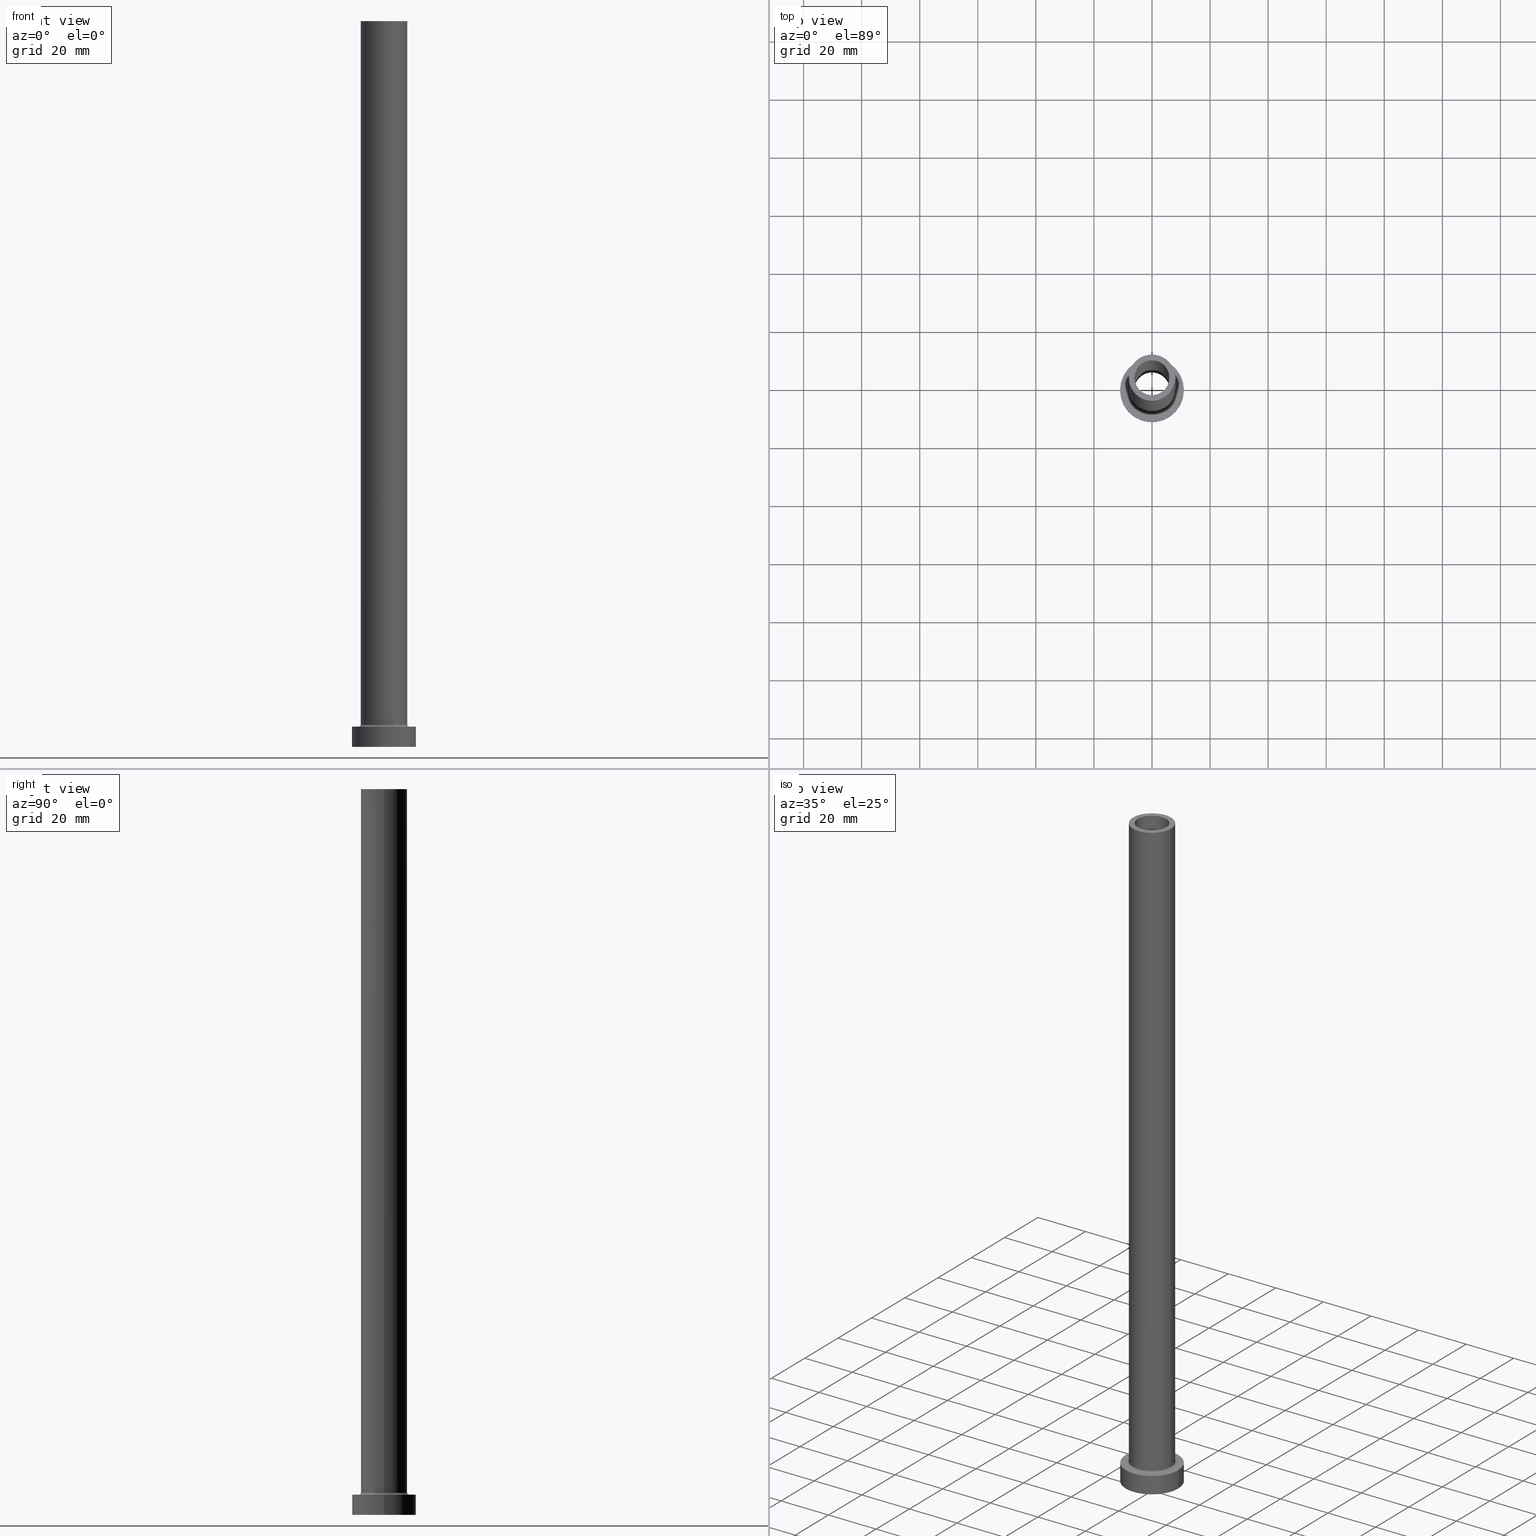
[diagram: canonical four-view strip — front | top / right | iso, engineering-drawing reading convention]
A machine part, canonical four-view strip (front | top / right | iso — engineering-drawing reading convention). The complete STEP part file that produces these views, byte-faithful:
ISO-10303-21;
HEADER;
FILE_DESCRIPTION (( 'STEP AP203' ),
    '1' );
FILE_NAME ('228f.STEP',
    '2023-02-13T09:07:29',
    ( '' ),
    ( '' ),
    'SwSTEP 2.0',
    'SolidWorks 2019',
    '' );
FILE_SCHEMA (( 'CONFIG_CONTROL_DESIGN' ));
ENDSEC;

DATA;
#1 = DIRECTION ( 'NONE',  ( -1.000000000000000000, 1.224646799147353207E-16, 0.000000000000000000 ) ) ;
#2 = EDGE_LOOP ( 'NONE', ( #258, #254, #183, #315 ) ) ;
#3 = ADVANCED_FACE ( 'NONE', ( #377 ), #167, .T. ) ;
#4 = CARTESIAN_POINT ( 'NONE',  ( -6.150000000000000355, 0.000000000000000000, 205.0000000000000284 ) ) ;
#5 = DIRECTION ( 'NONE',  ( -1.000000000000000000, 0.000000000000000000, 0.000000000000000000 ) ) ;
#6 = EDGE_CURVE ( 'NONE', #221, #110, #362, .T. ) ;
#7 = TOROIDAL_SURFACE ( 'NONE', #452, 8.699999999999999289, 0.6999999999999999556 ) ;
#8 = LINE ( 'NONE', #289, #176 ) ;
#9 = ORIENTED_EDGE ( 'NONE', *, *, #457, .T. ) ;
#10 = FACE_OUTER_BOUND ( 'NONE', #290, .T. ) ;
#11 = VECTOR ( 'NONE', #63, 1000.000000000000000 ) ;
#12 = ORIENTED_EDGE ( 'NONE', *, *, #274, .F. ) ;
#13 = LOCAL_TIME ( 10, 7, 29.00000000000000000, #134 ) ;
#14 = DIRECTION ( 'NONE',  ( 1.000000000000000000, 0.000000000000000000, 0.000000000000000000 ) ) ;
#15 = EDGE_LOOP ( 'NONE', ( #401, #184, #142, #443 ) ) ;
#16 = ORIENTED_EDGE ( 'NONE', *, *, #345, .T. ) ;
#17 = DIRECTION ( 'NONE',  ( 1.000000000000000000, 0.000000000000000000, 0.000000000000000000 ) ) ;
#18 = DIRECTION ( 'NONE',  ( -0.000000000000000000, -0.000000000000000000, -1.000000000000000000 ) ) ;
#19 = CIRCLE ( 'NONE', #291, 6.000000000000000888 ) ;
#20 = DIRECTION ( 'NONE',  ( 0.000000000000000000, 0.000000000000000000, 1.000000000000000000 ) ) ;
#21 = DATE_TIME_ROLE ( 'creation_date' ) ;
#22 = CARTESIAN_POINT ( 'NONE',  ( 0.000000000000000000, 0.000000000000000000, 222.3948268171890845 ) ) ;
#23 = CARTESIAN_POINT ( 'NONE',  ( 8.000000000000000000, 9.797174393178825657E-16, 250.0000000000000000 ) ) ;
#24 = AXIS2_PLACEMENT_3D ( 'NONE', #35, #352, #347 ) ;
#25 = EDGE_CURVE ( 'NONE', #151, #187, #407, .T. ) ;
#26 = DIRECTION ( 'NONE',  ( 1.000000000000000000, 0.000000000000000000, 0.000000000000000000 ) ) ;
#27 = CLOSED_SHELL ( 'NONE', ( #391, #316, #124, #67, #3, #216, #322, #350, #48, #139, #89, #132, #331, #108 ) ) ;
#28 = CARTESIAN_POINT ( 'NONE',  ( 0.000000000000000000, 0.000000000000000000, 250.0000000000000000 ) ) ;
#29 = DIRECTION ( 'NONE',  ( -0.000000000000000000, -0.000000000000000000, -1.000000000000000000 ) ) ;
#30 = ORIENTED_EDGE ( 'NONE', *, *, #379, .T. ) ;
#31 = VECTOR ( 'NONE', #80, 1000.000000000000000 ) ;
#32 = DIRECTION ( 'NONE',  ( 1.224646799147353207E-16, 1.000000000000000000, -0.000000000000000000 ) ) ;
#33 = ORIENTED_EDGE ( 'NONE', *, *, #58, .T. ) ;
#34 = EDGE_CURVE ( 'NONE', #179, #79, #348, .T. ) ;
#35 = CARTESIAN_POINT ( 'NONE',  ( 0.000000000000000000, 0.000000000000000000, 250.0000000000000000 ) ) ;
#36 = CC_DESIGN_PERSON_AND_ORGANIZATION_ASSIGNMENT ( #51, #272, ( #162 ) ) ;
#37 = DIRECTION ( 'NONE',  ( -0.000000000000000000, -0.000000000000000000, -1.000000000000000000 ) ) ;
#38 = PRODUCT_DEFINITION_FORMATION_WITH_SPECIFIED_SOURCE ( 'LIBOVOLN�', '', #210, .NOT_KNOWN. ) ;
#39 = CC_DESIGN_PERSON_AND_ORGANIZATION_ASSIGNMENT ( #160, #92, ( #210 ) ) ;
#40 = FACE_OUTER_BOUND ( 'NONE', #112, .T. ) ;
#41 = CC_DESIGN_PERSON_AND_ORGANIZATION_ASSIGNMENT ( #447, #164, ( #38 ) ) ;
#42 = ORIENTED_EDGE ( 'NONE', *, *, #245, .T. ) ;
#43 = CIRCLE ( 'NONE', #410, 11.00000000000000000 ) ;
#44 = CARTESIAN_POINT ( 'NONE',  ( 0.000000000000000000, 0.000000000000000000, 0.000000000000000000 ) ) ;
#45 = EDGE_LOOP ( 'NONE', ( #88, #282, #398, #16 ) ) ;
#46 = DIRECTION ( 'NONE',  ( 1.000000000000000000, 0.000000000000000000, -0.000000000000000000 ) ) ;
#47 = EDGE_LOOP ( 'NONE', ( #395, #50, #431, #293 ) ) ;
#48 = ADVANCED_FACE ( 'NONE', ( #129 ), #310, .T. ) ;
#49 = LINE ( 'NONE', #405, #106 ) ;
#50 = ORIENTED_EDGE ( 'NONE', *, *, #383, .F. ) ;
#51 = PERSON_AND_ORGANIZATION ( #411, #446 ) ;
#52 = ORIENTED_EDGE ( 'NONE', *, *, #54, .T. ) ;
#53 = DATE_TIME_ROLE ( 'classification_date' ) ;
#54 = EDGE_CURVE ( 'NONE', #79, #179, #242, .T. ) ;
#55 = FACE_OUTER_BOUND ( 'NONE', #47, .T. ) ;
#56 = CARTESIAN_POINT ( 'NONE',  ( 0.000000000000000000, 0.000000000000000000, 7.000000000000000000 ) ) ;
#57 = CARTESIAN_POINT ( 'NONE',  ( 0.000000000000000000, 0.000000000000000000, 0.000000000000000000 ) ) ;
#58 = EDGE_CURVE ( 'NONE', #251, #159, #43, .T. ) ;
#59 = PERSON_AND_ORGANIZATION ( #411, #446 ) ;
#60 = DIRECTION ( 'NONE',  ( 1.000000000000000000, 0.000000000000000000, 0.000000000000000000 ) ) ;
#61 = CIRCLE ( 'NONE', #214, 6.150000000000000355 ) ;
#62 = CIRCLE ( 'NONE', #24, 8.000000000000000000 ) ;
#63 = DIRECTION ( 'NONE',  ( 0.000000000000000000, 0.000000000000000000, -1.000000000000000000 ) ) ;
#64 = DIRECTION ( 'NONE',  ( 1.000000000000000000, 0.000000000000000000, 0.000000000000000000 ) ) ;
#65 = ORIENTED_EDGE ( 'NONE', *, *, #442, .T. ) ;
#66 = CARTESIAN_POINT ( 'NONE',  ( -8.000000000000000000, 0.000000000000000000, 250.0000000000000000 ) ) ;
#67 = ADVANCED_FACE ( 'NONE', ( #420 ), #381, .T. ) ;
#68 = AXIS2_PLACEMENT_3D ( 'NONE', #277, #423, #387 ) ;
#69 = CARTESIAN_POINT ( 'NONE',  ( 0.000000000000000000, 0.000000000000000000, 205.0000000000000284 ) ) ;
#70 = EDGE_LOOP ( 'NONE', ( #403, #285, #318, #33 ) ) ;
#71 = FACE_OUTER_BOUND ( 'NONE', #70, .T. ) ;
#72 = CIRCLE ( 'NONE', #458, 11.00000000000000000 ) ;
#73 = EDGE_CURVE ( 'NONE', #81, #123, #72, .T. ) ;
#74 = CARTESIAN_POINT ( 'NONE',  ( 11.00000000000000000, 1.347111479062088405E-15, 7.000000000000000000 ) ) ;
#75 = CC_DESIGN_DATE_AND_TIME_ASSIGNMENT ( #87, #21, ( #209 ) ) ;
#76 = VECTOR ( 'NONE', #206, 1000.000000000000000 ) ;
#77 = LINE ( 'NONE', #441, #31 ) ;
#78 = CC_DESIGN_APPROVAL ( #204, ( #38 ) ) ;
#79 = VERTEX_POINT ( 'NONE', #273 ) ;
#80 = DIRECTION ( 'NONE',  ( -0.000000000000000000, -0.000000000000000000, -1.000000000000000000 ) ) ;
#81 = VERTEX_POINT ( 'NONE', #419 ) ;
#82 = FACE_BOUND ( 'NONE', #144, .T. ) ;
#83 = ORIENTED_EDGE ( 'NONE', *, *, #34, .T. ) ;
#84 = DIRECTION ( 'NONE',  ( 0.000000000000000000, 0.000000000000000000, 1.000000000000000000 ) ) ;
#85 = AXIS2_PLACEMENT_3D ( 'NONE', #317, #32, #1 ) ;
#86 = VERTEX_POINT ( 'NONE', #374 ) ;
#87 = DATE_AND_TIME ( #230, #130 ) ;
#88 = ORIENTED_EDGE ( 'NONE', *, *, #442, .F. ) ;
#89 = ADVANCED_FACE ( 'NONE', ( #55 ), #7, .F. ) ;
#90 = PERSON_AND_ORGANIZATION_ROLE ( 'creator' ) ;
#91 = DIRECTION ( 'NONE',  ( 0.000000000000000000, 0.000000000000000000, 1.000000000000000000 ) ) ;
#92 = PERSON_AND_ORGANIZATION_ROLE ( 'design_owner' ) ;
#93 = DIRECTION ( 'NONE',  ( -0.000000000000000000, -0.000000000000000000, -1.000000000000000000 ) ) ;
#94 = AXIS2_PLACEMENT_3D ( 'NONE', #218, #121, #436 ) ;
#95 = DIRECTION ( 'NONE',  ( 1.000000000000000000, 0.000000000000000000, 0.000000000000000000 ) ) ;
#96 = APPLICATION_PROTOCOL_DEFINITION ( 'international standard', 'config_control_design', 1994, #225 ) ;
#97 = LINE ( 'NONE', #195, #11 ) ;
#98 = CARTESIAN_POINT ( 'NONE',  ( 0.000000000000000000, 0.000000000000000000, 7.000000000000000000 ) ) ;
#99 = AXIS2_PLACEMENT_3D ( 'NONE', #22, #177, #109 ) ;
#100 = AXIS2_PLACEMENT_3D ( 'NONE', #116, #259, #402 ) ;
#101 = FACE_OUTER_BOUND ( 'NONE', #219, .T. ) ;
#102 = EDGE_CURVE ( 'NONE', #86, #187, #199, .T. ) ;
#103 = FACE_BOUND ( 'NONE', #288, .T. ) ;
#104 = DIRECTION ( 'NONE',  ( 0.000000000000000000, 0.000000000000000000, 1.000000000000000000 ) ) ;
#105 = CIRCLE ( 'NONE', #367, 6.150000000000000355 ) ;
#106 = VECTOR ( 'NONE', #157, 1000.000000000000000 ) ;
#107 = CARTESIAN_POINT ( 'NONE',  ( 0.000000000000000000, 0.000000000000000000, 0.000000000000000000 ) ) ;
#108 = ADVANCED_FACE ( 'NONE', ( #197 ), #163, .F. ) ;
#109 = DIRECTION ( 'NONE',  ( -1.000000000000000000, 0.000000000000000000, 0.000000000000000000 ) ) ;
#110 = VERTEX_POINT ( 'NONE', #168 ) ;
#111 = DIRECTION ( 'NONE',  ( 1.000000000000000000, 0.000000000000000000, 0.000000000000000000 ) ) ;
#112 = EDGE_LOOP ( 'NONE', ( #279, #365 ) ) ;
#113 = DIRECTION ( 'NONE',  ( 0.000000000000000000, 0.000000000000000000, -1.000000000000000000 ) ) ;
#114 = AXIS2_PLACEMENT_3D ( 'NONE', #44, #434, #14 ) ;
#115 = ORIENTED_EDGE ( 'NONE', *, *, #245, .F. ) ;
#116 = CARTESIAN_POINT ( 'NONE',  ( 0.000000000000000000, 0.000000000000000000, 0.000000000000000000 ) ) ;
#117 = EDGE_CURVE ( 'NONE', #221, #361, #97, .T. ) ;
#118 = ORIENTED_EDGE ( 'NONE', *, *, #6, .F. ) ;
#119 = CARTESIAN_POINT ( 'NONE',  ( 8.699999999999999289, 0.000000000000000000, 7.700000000000012612 ) ) ;
#120 = ORIENTED_EDGE ( 'NONE', *, *, #202, .T. ) ;
#121 = DIRECTION ( 'NONE',  ( 0.000000000000000000, 0.000000000000000000, 1.000000000000000000 ) ) ;
#122 = AXIS2_PLACEMENT_3D ( 'NONE', #147, #84, #253 ) ;
#123 = VERTEX_POINT ( 'NONE', #203 ) ;
#124 = ADVANCED_FACE ( 'NONE', ( #448 ), #246, .F. ) ;
#125 = PERSON_AND_ORGANIZATION_ROLE ( 'design_supplier' ) ;
#126 = APPLICATION_PROTOCOL_DEFINITION ( 'international standard', 'config_control_design', 1994, #399 ) ;
#127 = DIRECTION ( 'NONE',  ( -0.000000000000000000, -0.000000000000000000, -1.000000000000000000 ) ) ;
#128 = APPROVAL_STATUS ( 'not_yet_approved' ) ;
#129 = FACE_OUTER_BOUND ( 'NONE', #385, .T. ) ;
#130 = LOCAL_TIME ( 10, 7, 29.00000000000000000, #341 ) ;
#131 = APPROVAL_ROLE ( '' ) ;
#132 = ADVANCED_FACE ( 'NONE', ( #340 ), #342, .F. ) ;
#133 = CARTESIAN_POINT ( 'NONE',  ( 0.000000000000000000, 0.000000000000000000, 250.0000000000000000 ) ) ;
#134 = COORDINATED_UNIVERSAL_TIME_OFFSET ( 1, 0, .AHEAD. ) ;
#135 = DIRECTION ( 'NONE',  ( -1.000000000000000000, 0.000000000000000000, 0.000000000000000000 ) ) ;
#136 = FACE_OUTER_BOUND ( 'NONE', #445, .T. ) ;
#137 = AXIS2_PLACEMENT_3D ( 'NONE', #69, #208, #205 ) ;
#138 = CC_DESIGN_APPROVAL ( #185, ( #162 ) ) ;
#139 = ADVANCED_FACE ( 'NONE', ( #313, #101 ), #384, .T. ) ;
#140 = DIRECTION ( 'NONE',  ( 1.000000000000000000, 0.000000000000000000, -0.000000000000000000 ) ) ;
#141 = CARTESIAN_POINT ( 'NONE',  ( 8.000000000000000000, 9.797174393178825657E-16, 7.700000000000012612 ) ) ;
#142 = ORIENTED_EDGE ( 'NONE', *, *, #457, .F. ) ;
#143 = CARTESIAN_POINT ( 'NONE',  ( -6.150000000000000355, 0.000000000000000000, 0.000000000000000000 ) ) ;
#144 = EDGE_LOOP ( 'NONE', ( #9, #30 ) ) ;
#145 = DIRECTION ( 'NONE',  ( 1.000000000000000000, 0.000000000000000000, 0.000000000000000000 ) ) ;
#146 = ORIENTED_EDGE ( 'NONE', *, *, #237, .F. ) ;
#147 = CARTESIAN_POINT ( 'NONE',  ( 0.000000000000000000, 0.000000000000000000, 7.700000000000012612 ) ) ;
#148 = VERTEX_POINT ( 'NONE', #143 ) ;
#149 = DIRECTION ( 'NONE',  ( 0.000000000000000000, 0.000000000000000000, -1.000000000000000000 ) ) ;
#150 = DESIGN_CONTEXT ( 'detailed design', #225, 'design' ) ;
#151 = VERTEX_POINT ( 'NONE', #283 ) ;
#152 = CARTESIAN_POINT ( 'NONE',  ( 0.000000000000000000, 0.000000000000000000, 205.0000000000000284 ) ) ;
#153 = AXIS2_PLACEMENT_3D ( 'NONE', #305, #196, #17 ) ;
#154 = EDGE_LOOP ( 'NONE', ( #334, #12 ) ) ;
#155 = DIRECTION ( 'NONE',  ( 0.000000000000000000, 0.000000000000000000, -1.000000000000000000 ) ) ;
#156 = ORIENTED_EDGE ( 'NONE', *, *, #430, .T. ) ;
#157 = DIRECTION ( 'NONE',  ( 0.000000000000000000, 0.000000000000000000, -1.000000000000000000 ) ) ;
#158 = EDGE_CURVE ( 'NONE', #110, #337, #173, .T. ) ;
#159 = VERTEX_POINT ( 'NONE', #355 ) ;
#160 = PERSON_AND_ORGANIZATION ( #411, #446 ) ;
#161 = VECTOR ( 'NONE', #461, 1000.000000000000000 ) ;
#162 = SECURITY_CLASSIFICATION ( '', '', #372 ) ;
#163 = CYLINDRICAL_SURFACE ( 'NONE', #213, 6.000000000000000888 ) ;
#164 = PERSON_AND_ORGANIZATION_ROLE ( 'creator' ) ;
#165 = DIRECTION ( 'NONE',  ( 0.000000000000000000, 0.000000000000000000, 1.000000000000000000 ) ) ;
#166 = COORDINATED_UNIVERSAL_TIME_OFFSET ( 1, 0, .AHEAD. ) ;
#167 = CYLINDRICAL_SURFACE ( 'NONE', #212, 11.00000000000000000 ) ;
#168 = CARTESIAN_POINT ( 'NONE',  ( 6.000000000000000888, 7.347880794884119736E-16, 250.0000000000000000 ) ) ;
#169 = AXIS2_PLACEMENT_3D ( 'NONE', #265, #20, #232 ) ;
#170 = CIRCLE ( 'NONE', #100, 11.00000000000000000 ) ;
#171 = DIRECTION ( 'NONE',  ( -1.000000000000000000, 0.000000000000000000, 0.000000000000000000 ) ) ;
#172 = AXIS2_PLACEMENT_3D ( 'NONE', #56, #93, #95 ) ;
#173 = LINE ( 'NONE', #248, #161 ) ;
#174 = EDGE_CURVE ( 'NONE', #217, #406, #105, .T. ) ;
#175 = CARTESIAN_POINT ( 'NONE',  ( -11.00000000000000000, 0.000000000000000000, 0.000000000000000000 ) ) ;
#176 = VECTOR ( 'NONE', #113, 1000.000000000000000 ) ;
#177 = DIRECTION ( 'NONE',  ( 0.000000000000000000, 0.000000000000000000, -1.000000000000000000 ) ) ;
#178 = CARTESIAN_POINT ( 'NONE',  ( -8.699999999999999289, 1.065442715258197248E-15, 7.000000000000006217 ) ) ;
#179 = VERTEX_POINT ( 'NONE', #178 ) ;
#180 = CARTESIAN_POINT ( 'NONE',  ( 0.000000000000000000, 0.000000000000000000, 222.3948268171890845 ) ) ;
#181 = CARTESIAN_POINT ( 'NONE',  ( 0.000000000000000000, 0.000000000000000000, 205.0000000000000284 ) ) ;
#182 = DIRECTION ( 'NONE',  ( -1.000000000000000000, 0.000000000000000000, 0.000000000000000000 ) ) ;
#183 = ORIENTED_EDGE ( 'NONE', *, *, #383, .T. ) ;
#184 = ORIENTED_EDGE ( 'NONE', *, *, #158, .T. ) ;
#185 = APPROVAL ( #128, 'NEUR�EN�' ) ;
#186 = AXIS2_PLACEMENT_3D ( 'NONE', #152, #297, #394 ) ;
#187 = VERTEX_POINT ( 'NONE', #141 ) ;
#188 = VERTEX_POINT ( 'NONE', #284 ) ;
#189 = AXIS2_PLACEMENT_3D ( 'NONE', #303, #344, #135 ) ;
#190 = CALENDAR_DATE ( 2023, 13, 2 ) ;
#191 = EDGE_LOOP ( 'NONE', ( #435, #260, #298, #409 ) ) ;
#192 = APPROVAL_DATE_TIME ( #450, #204 ) ;
#193 = CIRCLE ( 'NONE', #222, 6.000000000000000888 ) ;
#194 = CC_DESIGN_SECURITY_CLASSIFICATION ( #162, ( #38 ) ) ;
#195 = CARTESIAN_POINT ( 'NONE',  ( -6.000000000000000888, 0.000000000000000000, 250.0000000000000000 ) ) ;
#196 = DIRECTION ( 'NONE',  ( 0.000000000000000000, 0.000000000000000000, 1.000000000000000000 ) ) ;
#197 = FACE_OUTER_BOUND ( 'NONE', #296, .T. ) ;
#198 = COORDINATED_UNIVERSAL_TIME_OFFSET ( 1, 0, .AHEAD. ) ;
#199 = LINE ( 'NONE', #23, #414 ) ;
#200 = PERSON_AND_ORGANIZATION ( #411, #446 ) ;
#201 = AXIS2_PLACEMENT_3D ( 'NONE', #349, #29, #432 ) ;
#202 = EDGE_CURVE ( 'NONE', #81, #159, #428, .T. ) ;
#203 = CARTESIAN_POINT ( 'NONE',  ( -11.00000000000000000, 0.000000000000000000, 7.000000000000000000 ) ) ;
#204 = APPROVAL ( #235, 'NEUR�EN�' ) ;
#205 = DIRECTION ( 'NONE',  ( 1.000000000000000000, 0.000000000000000000, 0.000000000000000000 ) ) ;
#206 = DIRECTION ( 'NONE',  ( -0.000000000000000000, -0.000000000000000000, -1.000000000000000000 ) ) ;
#207 = ORIENTED_EDGE ( 'NONE', *, *, #117, .T. ) ;
#208 = DIRECTION ( 'NONE',  ( 0.000000000000000000, 0.000000000000000000, 1.000000000000000000 ) ) ;
#209 = PRODUCT_DEFINITION ( 'NEZN�M�', '', #38, #150 ) ;
#210 = PRODUCT ( '228f', '228f', '', ( #300 ) ) ;
#211 = DIRECTION ( 'NONE',  ( 1.000000000000000000, 0.000000000000000000, 0.000000000000000000 ) ) ;
#212 = AXIS2_PLACEMENT_3D ( 'NONE', #306, #236, #233 ) ;
#213 = AXIS2_PLACEMENT_3D ( 'NONE', #455, #268, #239 ) ;
#214 = AXIS2_PLACEMENT_3D ( 'NONE', #107, #250, #64 ) ;
#215 = DIRECTION ( 'NONE',  ( 0.000000000000000000, 0.000000000000000000, 1.000000000000000000 ) ) ;
#216 = ADVANCED_FACE ( 'NONE', ( #71 ), #388, .T. ) ;
#217 = VERTEX_POINT ( 'NONE', #4 ) ;
#218 = CARTESIAN_POINT ( 'NONE',  ( 0.000000000000000000, 0.000000000000000000, 205.0000000000000284 ) ) ;
#219 = EDGE_LOOP ( 'NONE', ( #333, #390 ) ) ;
#220 = DIRECTION ( 'NONE',  ( 0.000000000000000000, 0.000000000000000000, 1.000000000000000000 ) ) ;
#221 = VERTEX_POINT ( 'NONE', #244 ) ;
#222 = AXIS2_PLACEMENT_3D ( 'NONE', #280, #241, #392 ) ;
#223 = FACE_OUTER_BOUND ( 'NONE', #15, .T. ) ;
#224 = EDGE_LOOP ( 'NONE', ( #370, #120, #156, #229 ) ) ;
#225 = APPLICATION_CONTEXT ( 'configuration controlled 3d designs of mechanical parts and assemblies' ) ;
#226 = PERSON_AND_ORGANIZATION ( #411, #446 ) ;
#227 = ORIENTED_EDGE ( 'NONE', *, *, #364, .T. ) ;
#228 = CALENDAR_DATE ( 2023, 13, 2 ) ;
#229 = ORIENTED_EDGE ( 'NONE', *, *, #308, .F. ) ;
#230 = CALENDAR_DATE ( 2023, 13, 2 ) ;
#231 = CIRCLE ( 'NONE', #309, 8.000000000000000000 ) ;
#232 = DIRECTION ( 'NONE',  ( 1.000000000000000000, 0.000000000000000000, 0.000000000000000000 ) ) ;
#233 = DIRECTION ( 'NONE',  ( -1.000000000000000000, 0.000000000000000000, 0.000000000000000000 ) ) ;
#234 = CC_DESIGN_DATE_AND_TIME_ASSIGNMENT ( #336, #53, ( #162 ) ) ;
#235 = APPROVAL_STATUS ( 'not_yet_approved' ) ;
#236 = DIRECTION ( 'NONE',  ( -0.000000000000000000, -0.000000000000000000, -1.000000000000000000 ) ) ;
#237 = EDGE_CURVE ( 'NONE', #406, #217, #429, .T. ) ;
#238 = PRODUCT_DEFINITION_SHAPE ( 'NONE', 'NONE',  #209 ) ;
#239 = DIRECTION ( 'NONE',  ( -1.000000000000000000, 0.000000000000000000, 0.000000000000000000 ) ) ;
#240 = CC_DESIGN_APPROVAL ( #421, ( #209 ) ) ;
#241 = DIRECTION ( 'NONE',  ( 0.000000000000000000, 0.000000000000000000, 1.000000000000000000 ) ) ;
#242 = CIRCLE ( 'NONE', #433, 8.699999999999999289 ) ;
#243 = PLANE ( 'NONE',  #68 ) ;
#244 = CARTESIAN_POINT ( 'NONE',  ( -6.000000000000000888, 0.000000000000000000, 250.0000000000000000 ) ) ;
#245 = EDGE_CURVE ( 'NONE', #110, #221, #193, .T. ) ;
#246 = TOROIDAL_SURFACE ( 'NONE', #169, 8.699999999999999289, 0.6999999999999999556 ) ;
#247 = AXIS2_PLACEMENT_3D ( 'NONE', #119, #444, #149 ) ;
#248 = CARTESIAN_POINT ( 'NONE',  ( 6.000000000000000888, 7.347880794884119736E-16, 250.0000000000000000 ) ) ;
#249 = MANIFOLD_SOLID_BREP ( 'Odebrat vysunut�m4', #27 ) ;
#250 = DIRECTION ( 'NONE',  ( -0.000000000000000000, -0.000000000000000000, -1.000000000000000000 ) ) ;
#251 = VERTEX_POINT ( 'NONE', #175 ) ;
#252 = EDGE_CURVE ( 'NONE', #329, #86, #62, .T. ) ;
#253 = DIRECTION ( 'NONE',  ( 1.000000000000000000, 0.000000000000000000, 0.000000000000000000 ) ) ;
#254 = ORIENTED_EDGE ( 'NONE', *, *, #102, .T. ) ;
#255 = CARTESIAN_POINT ( 'NONE',  ( 0.000000000000000000, 0.000000000000000000, 0.000000000000000000 ) ) ;
#256 = ORIENTED_EDGE ( 'NONE', *, *, #174, .F. ) ;
#257 =( LENGTH_UNIT ( ) NAMED_UNIT ( * ) SI_UNIT ( .MILLI., .METRE. ) );
#258 = ORIENTED_EDGE ( 'NONE', *, *, #295, .F. ) ;
#259 = DIRECTION ( 'NONE',  ( 0.000000000000000000, 0.000000000000000000, 1.000000000000000000 ) ) ;
#260 = ORIENTED_EDGE ( 'NONE', *, *, #266, .T. ) ;
#261 = CC_DESIGN_PERSON_AND_ORGANIZATION_ASSIGNMENT ( #200, #90, ( #209 ) ) ;
#262 = CARTESIAN_POINT ( 'NONE',  ( 6.150000000000000355, 7.531577814756222064E-16, 205.0000000000000284 ) ) ;
#263 = ORIENTED_EDGE ( 'NONE', *, *, #252, .F. ) ;
#264 = PERSON_AND_ORGANIZATION ( #411, #446 ) ;
#265 = CARTESIAN_POINT ( 'NONE',  ( 0.000000000000000000, 0.000000000000000000, 7.700000000000012612 ) ) ;
#266 = EDGE_CURVE ( 'NONE', #151, #179, #460, .T. ) ;
#267 = PERSON_AND_ORGANIZATION ( #411, #446 ) ;
#268 = DIRECTION ( 'NONE',  ( 0.000000000000000000, 0.000000000000000000, -1.000000000000000000 ) ) ;
#269 = COORDINATED_UNIVERSAL_TIME_OFFSET ( 1, 0, .AHEAD. ) ;
#270 = AXIS2_PLACEMENT_3D ( 'NONE', #369, #155, #182 ) ;
#271 = CARTESIAN_POINT ( 'NONE',  ( 0.000000000000000000, 0.000000000000000000, 7.000000000000000000 ) ) ;
#272 = PERSON_AND_ORGANIZATION_ROLE ( 'classification_officer' ) ;
#273 = CARTESIAN_POINT ( 'NONE',  ( 8.699999999999999289, 0.000000000000000000, 7.000000000000006217 ) ) ;
#274 = EDGE_CURVE ( 'NONE', #188, #148, #61, .T. ) ;
#275 = DATE_AND_TIME ( #228, #13 ) ;
#276 = DIRECTION ( 'NONE',  ( 0.000000000000000000, 0.000000000000000000, 1.000000000000000000 ) ) ;
#277 = CARTESIAN_POINT ( 'NONE',  ( 0.000000000000000000, 0.000000000000000000, 7.000000000000000000 ) ) ;
#278 = CIRCLE ( 'NONE', #114, 6.150000000000000355 ) ;
#279 = ORIENTED_EDGE ( 'NONE', *, *, #58, .F. ) ;
#280 = CARTESIAN_POINT ( 'NONE',  ( 0.000000000000000000, 0.000000000000000000, 250.0000000000000000 ) ) ;
#281 = DIRECTION ( 'NONE',  ( 0.000000000000000000, 0.000000000000000000, 1.000000000000000000 ) ) ;
#282 = ORIENTED_EDGE ( 'NONE', *, *, #237, .T. ) ;
#283 = CARTESIAN_POINT ( 'NONE',  ( -8.000000000000000000, 0.000000000000000000, 7.700000000000012612 ) ) ;
#284 = CARTESIAN_POINT ( 'NONE',  ( 6.150000000000000355, 7.531577814756222064E-16, 0.000000000000000000 ) ) ;
#285 = ORIENTED_EDGE ( 'NONE', *, *, #364, .F. ) ;
#286 = PLANE ( 'NONE',  #438 ) ;
#287 = UNCERTAINTY_MEASURE_WITH_UNIT (LENGTH_MEASURE( 1.000000000000000082E-05 ), #257, 'distance_accuracy_value', 'NONE');
#288 = EDGE_LOOP ( 'NONE', ( #52, #83 ) ) ;
#289 = CARTESIAN_POINT ( 'NONE',  ( 6.150000000000000355, 7.531577814756222064E-16, 222.3948268171890845 ) ) ;
#290 = EDGE_LOOP ( 'NONE', ( #256, #146 ) ) ;
#291 = AXIS2_PLACEMENT_3D ( 'NONE', #181, #220, #111 ) ;
#292 = CARTESIAN_POINT ( 'NONE',  ( 6.000000000000000888, 7.347880794884119736E-16, 205.0000000000000284 ) ) ;
#293 = ORIENTED_EDGE ( 'NONE', *, *, #34, .F. ) ;
#294 = FACE_BOUND ( 'NONE', #154, .T. ) ;
#295 = EDGE_CURVE ( 'NONE', #86, #329, #231, .T. ) ;
#296 = EDGE_LOOP ( 'NONE', ( #320, #42, #207, #363 ) ) ;
#297 = DIRECTION ( 'NONE',  ( 0.000000000000000000, 0.000000000000000000, 1.000000000000000000 ) ) ;
#298 = ORIENTED_EDGE ( 'NONE', *, *, #54, .F. ) ;
#299 = LOCAL_TIME ( 10, 7, 29.00000000000000000, #166 ) ;
#300 = MECHANICAL_CONTEXT ( 'NONE', #399, 'mechanical' ) ;
#301 = DIRECTION ( 'NONE',  ( 0.000000000000000000, 0.000000000000000000, 1.000000000000000000 ) ) ;
#302 = AXIS2_PLACEMENT_3D ( 'NONE', #451, #91, #346 ) ;
#303 = CARTESIAN_POINT ( 'NONE',  ( 0.000000000000000000, 0.000000000000000000, 250.0000000000000000 ) ) ;
#304 = CC_DESIGN_PERSON_AND_ORGANIZATION_ASSIGNMENT ( #59, #125, ( #38 ) ) ;
#305 = CARTESIAN_POINT ( 'NONE',  ( 0.000000000000000000, 0.000000000000000000, 0.000000000000000000 ) ) ;
#306 = CARTESIAN_POINT ( 'NONE',  ( 0.000000000000000000, 0.000000000000000000, 7.000000000000000000 ) ) ;
#307 = APPROVAL_ROLE ( '' ) ;
#308 = EDGE_CURVE ( 'NONE', #123, #251, #425, .T. ) ;
#309 = AXIS2_PLACEMENT_3D ( 'NONE', #393, #281, #211 ) ;
#310 = CYLINDRICAL_SURFACE ( 'NONE', #189, 8.000000000000000000 ) ;
#311 = DIRECTION ( 'NONE',  ( 1.000000000000000000, 0.000000000000000000, 0.000000000000000000 ) ) ;
#312 = FACE_OUTER_BOUND ( 'NONE', #354, .T. ) ;
#313 = FACE_BOUND ( 'NONE', #351, .T. ) ;
#314 = CIRCLE ( 'NONE', #122, 8.000000000000000000 ) ;
#315 = ORIENTED_EDGE ( 'NONE', *, *, #371, .F. ) ;
#316 = ADVANCED_FACE ( 'NONE', ( #312 ), #459, .F. ) ;
#317 = CARTESIAN_POINT ( 'NONE',  ( -8.699999999999999289, 1.065442715258197248E-15, 7.700000000000012612 ) ) ;
#318 = ORIENTED_EDGE ( 'NONE', *, *, #308, .T. ) ;
#319 = DIRECTION ( 'NONE',  ( 0.000000000000000000, 0.000000000000000000, 1.000000000000000000 ) ) ;
#320 = ORIENTED_EDGE ( 'NONE', *, *, #158, .F. ) ;
#321 = DIRECTION ( 'NONE',  ( 0.000000000000000000, 0.000000000000000000, -1.000000000000000000 ) ) ;
#322 = ADVANCED_FACE ( 'NONE', ( #103, #136 ), #243, .T. ) ;
#323 = AXIS2_PLACEMENT_3D ( 'NONE', #180, #321, #5 ) ;
#324 = ORIENTED_EDGE ( 'NONE', *, *, #404, .F. ) ;
#325 = ADVANCED_BREP_SHAPE_REPRESENTATION ( '228f', ( #249, #153 ), #353 ) ;
#326 = DIRECTION ( 'NONE',  ( 1.000000000000000000, 0.000000000000000000, 0.000000000000000000 ) ) ;
#327 = ORIENTED_EDGE ( 'NONE', *, *, #73, .T. ) ;
#328 =( NAMED_UNIT ( * ) PLANE_ANGLE_UNIT ( ) SI_UNIT ( $, .RADIAN. ) );
#329 = VERTEX_POINT ( 'NONE', #66 ) ;
#330 = APPROVAL_PERSON_ORGANIZATION ( #267, #421, #131 ) ;
#331 = ADVANCED_FACE ( 'NONE', ( #82, #10 ), #332, .F. ) ;
#332 = PLANE ( 'NONE',  #186 ) ;
#333 = ORIENTED_EDGE ( 'NONE', *, *, #252, .T. ) ;
#334 = ORIENTED_EDGE ( 'NONE', *, *, #345, .F. ) ;
#335 = AXIS2_PLACEMENT_3D ( 'NONE', #382, #127, #171 ) ;
#336 = DATE_AND_TIME ( #190, #396 ) ;
#337 = VERTEX_POINT ( 'NONE', #292 ) ;
#338 = LOCAL_TIME ( 10, 7, 29.00000000000000000, #269 ) ;
#339 = SHAPE_DEFINITION_REPRESENTATION ( #238, #325 ) ;
#340 = FACE_OUTER_BOUND ( 'NONE', #45, .T. ) ;
#341 = COORDINATED_UNIVERSAL_TIME_OFFSET ( 1, 0, .AHEAD. ) ;
#342 = CYLINDRICAL_SURFACE ( 'NONE', #99, 6.150000000000000355 ) ;
#343 = APPROVAL_STATUS ( 'not_yet_approved' ) ;
#344 = DIRECTION ( 'NONE',  ( -0.000000000000000000, -0.000000000000000000, -1.000000000000000000 ) ) ;
#345 = EDGE_CURVE ( 'NONE', #148, #188, #278, .T. ) ;
#346 = DIRECTION ( 'NONE',  ( 1.000000000000000000, 0.000000000000000000, 0.000000000000000000 ) ) ;
#347 = DIRECTION ( 'NONE',  ( 1.000000000000000000, 0.000000000000000000, 0.000000000000000000 ) ) ;
#348 = CIRCLE ( 'NONE', #172, 8.699999999999999289 ) ;
#349 = CARTESIAN_POINT ( 'NONE',  ( 0.000000000000000000, 0.000000000000000000, 7.000000000000000000 ) ) ;
#350 = ADVANCED_FACE ( 'NONE', ( #294, #40 ), #286, .F. ) ;
#351 = EDGE_LOOP ( 'NONE', ( #118, #115 ) ) ;
#352 = DIRECTION ( 'NONE',  ( 0.000000000000000000, 0.000000000000000000, 1.000000000000000000 ) ) ;
#353 =( GEOMETRIC_REPRESENTATION_CONTEXT ( 3 ) GLOBAL_UNCERTAINTY_ASSIGNED_CONTEXT ( ( #287 ) ) GLOBAL_UNIT_ASSIGNED_CONTEXT ( ( #257, #328, #357 ) ) REPRESENTATION_CONTEXT ( 'NONE', 'WORKASPACE' ) );
#354 = EDGE_LOOP ( 'NONE', ( #437, #65, #424, #324 ) ) ;
#355 = CARTESIAN_POINT ( 'NONE',  ( 11.00000000000000000, 1.347111479062088405E-15, 0.000000000000000000 ) ) ;
#356 = CARTESIAN_POINT ( 'NONE',  ( -11.00000000000000000, 0.000000000000000000, 7.000000000000000000 ) ) ;
#357 =( NAMED_UNIT ( * ) SI_UNIT ( $, .STERADIAN. ) SOLID_ANGLE_UNIT ( ) );
#358 = AXIS2_PLACEMENT_3D ( 'NONE', #28, #319, #140 ) ;
#359 = CIRCLE ( 'NONE', #247, 0.7000000000000000666 ) ;
#360 = CYLINDRICAL_SURFACE ( 'NONE', #270, 6.000000000000000888 ) ;
#361 = VERTEX_POINT ( 'NONE', #400 ) ;
#362 = CIRCLE ( 'NONE', #386, 6.000000000000000888 ) ;
#363 = ORIENTED_EDGE ( 'NONE', *, *, #379, .F. ) ;
#364 = EDGE_CURVE ( 'NONE', #123, #81, #453, .T. ) ;
#365 = ORIENTED_EDGE ( 'NONE', *, *, #430, .F. ) ;
#366 = PRODUCT_RELATED_PRODUCT_CATEGORY ( 'detail', '', ( #210 ) ) ;
#367 = AXIS2_PLACEMENT_3D ( 'NONE', #426, #104, #145 ) ;
#368 = VECTOR ( 'NONE', #37, 1000.000000000000000 ) ;
#369 = CARTESIAN_POINT ( 'NONE',  ( 0.000000000000000000, 0.000000000000000000, 250.0000000000000000 ) ) ;
#370 = ORIENTED_EDGE ( 'NONE', *, *, #73, .F. ) ;
#371 = EDGE_CURVE ( 'NONE', #329, #151, #77, .T. ) ;
#372 = SECURITY_CLASSIFICATION_LEVEL ( 'unclassified' ) ;
#373 = ORIENTED_EDGE ( 'NONE', *, *, #25, .T. ) ;
#374 = CARTESIAN_POINT ( 'NONE',  ( 8.000000000000000000, 9.797174393178825657E-16, 250.0000000000000000 ) ) ;
#375 = CIRCLE ( 'NONE', #94, 6.000000000000000888 ) ;
#376 = CALENDAR_DATE ( 2023, 13, 2 ) ;
#377 = FACE_OUTER_BOUND ( 'NONE', #224, .T. ) ;
#378 = DIRECTION ( 'NONE',  ( 1.000000000000000000, 0.000000000000000000, 0.000000000000000000 ) ) ;
#379 = EDGE_CURVE ( 'NONE', #337, #361, #19, .T. ) ;
#380 = APPROVAL_ROLE ( '' ) ;
#381 = CYLINDRICAL_SURFACE ( 'NONE', #335, 8.000000000000000000 ) ;
#382 = CARTESIAN_POINT ( 'NONE',  ( 0.000000000000000000, 0.000000000000000000, 250.0000000000000000 ) ) ;
#383 = EDGE_CURVE ( 'NONE', #187, #151, #314, .T. ) ;
#384 = PLANE ( 'NONE',  #358 ) ;
#385 = EDGE_LOOP ( 'NONE', ( #440, #263, #427, #373 ) ) ;
#386 = AXIS2_PLACEMENT_3D ( 'NONE', #133, #301, #456 ) ;
#387 = DIRECTION ( 'NONE',  ( 1.000000000000000000, 0.000000000000000000, -0.000000000000000000 ) ) ;
#388 = CYLINDRICAL_SURFACE ( 'NONE', #201, 11.00000000000000000 ) ;
#389 = APPROVAL_PERSON_ORGANIZATION ( #226, #204, #380 ) ;
#390 = ORIENTED_EDGE ( 'NONE', *, *, #295, .T. ) ;
#391 = ADVANCED_FACE ( 'NONE', ( #223 ), #360, .F. ) ;
#392 = DIRECTION ( 'NONE',  ( 1.000000000000000000, 0.000000000000000000, 0.000000000000000000 ) ) ;
#393 = CARTESIAN_POINT ( 'NONE',  ( 0.000000000000000000, 0.000000000000000000, 250.0000000000000000 ) ) ;
#394 = DIRECTION ( 'NONE',  ( 1.000000000000000000, 0.000000000000000000, -0.000000000000000000 ) ) ;
#395 = ORIENTED_EDGE ( 'NONE', *, *, #266, .F. ) ;
#396 = LOCAL_TIME ( 10, 7, 29.00000000000000000, #198 ) ;
#397 = DIRECTION ( 'NONE',  ( 0.000000000000000000, 0.000000000000000000, 1.000000000000000000 ) ) ;
#398 = ORIENTED_EDGE ( 'NONE', *, *, #404, .T. ) ;
#399 = APPLICATION_CONTEXT ( 'configuration controlled 3d designs of mechanical parts and assemblies' ) ;
#400 = CARTESIAN_POINT ( 'NONE',  ( -6.000000000000000888, 0.000000000000000000, 205.0000000000000284 ) ) ;
#401 = ORIENTED_EDGE ( 'NONE', *, *, #6, .T. ) ;
#402 = DIRECTION ( 'NONE',  ( 1.000000000000000000, 0.000000000000000000, 0.000000000000000000 ) ) ;
#403 = ORIENTED_EDGE ( 'NONE', *, *, #202, .F. ) ;
#404 = EDGE_CURVE ( 'NONE', #217, #148, #49, .T. ) ;
#405 = CARTESIAN_POINT ( 'NONE',  ( -6.150000000000000355, 0.000000000000000000, 222.3948268171890845 ) ) ;
#406 = VERTEX_POINT ( 'NONE', #262 ) ;
#407 = CIRCLE ( 'NONE', #302, 8.000000000000000000 ) ;
#408 = DATE_AND_TIME ( #454, #338 ) ;
#409 = ORIENTED_EDGE ( 'NONE', *, *, #417, .F. ) ;
#410 = AXIS2_PLACEMENT_3D ( 'NONE', #57, #449, #26 ) ;
#411 = PERSON ( 'NEUR�EN�', 'NEUR�EN�', 'NEUR�EN�', ('NEUR�EN�'), ('NEUR�EN�'), ('NEUR�EN�') ) ;
#412 = APPROVAL_DATE_TIME ( #275, #421 ) ;
#413 = CARTESIAN_POINT ( 'NONE',  ( 0.000000000000000000, 0.000000000000000000, 7.700000000000012612 ) ) ;
#414 = VECTOR ( 'NONE', #18, 1000.000000000000000 ) ;
#415 = AXIS2_PLACEMENT_3D ( 'NONE', #439, #397, #326 ) ;
#416 = APPROVAL_DATE_TIME ( #408, #185 ) ;
#417 = EDGE_CURVE ( 'NONE', #187, #79, #359, .T. ) ;
#418 = DIRECTION ( 'NONE',  ( -0.000000000000000000, -0.000000000000000000, -1.000000000000000000 ) ) ;
#419 = CARTESIAN_POINT ( 'NONE',  ( 11.00000000000000000, 1.347111479062088405E-15, 7.000000000000000000 ) ) ;
#420 = FACE_OUTER_BOUND ( 'NONE', #2, .T. ) ;
#421 = APPROVAL ( #343, 'NEUR�EN�' ) ;
#422 = APPROVAL_PERSON_ORGANIZATION ( #264, #185, #307 ) ;
#423 = DIRECTION ( 'NONE',  ( 0.000000000000000000, 0.000000000000000000, 1.000000000000000000 ) ) ;
#424 = ORIENTED_EDGE ( 'NONE', *, *, #274, .T. ) ;
#425 = LINE ( 'NONE', #356, #368 ) ;
#426 = CARTESIAN_POINT ( 'NONE',  ( 0.000000000000000000, 0.000000000000000000, 205.0000000000000284 ) ) ;
#427 = ORIENTED_EDGE ( 'NONE', *, *, #371, .T. ) ;
#428 = LINE ( 'NONE', #74, #76 ) ;
#429 = CIRCLE ( 'NONE', #137, 6.150000000000000355 ) ;
#430 = EDGE_CURVE ( 'NONE', #159, #251, #170, .T. ) ;
#431 = ORIENTED_EDGE ( 'NONE', *, *, #417, .T. ) ;
#432 = DIRECTION ( 'NONE',  ( -1.000000000000000000, 0.000000000000000000, 0.000000000000000000 ) ) ;
#433 = AXIS2_PLACEMENT_3D ( 'NONE', #271, #418, #378 ) ;
#434 = DIRECTION ( 'NONE',  ( -0.000000000000000000, -0.000000000000000000, -1.000000000000000000 ) ) ;
#435 = ORIENTED_EDGE ( 'NONE', *, *, #25, .F. ) ;
#436 = DIRECTION ( 'NONE',  ( 1.000000000000000000, 0.000000000000000000, 0.000000000000000000 ) ) ;
#437 = ORIENTED_EDGE ( 'NONE', *, *, #174, .T. ) ;
#438 = AXIS2_PLACEMENT_3D ( 'NONE', #255, #215, #46 ) ;
#439 = CARTESIAN_POINT ( 'NONE',  ( 0.000000000000000000, 0.000000000000000000, 7.000000000000000000 ) ) ;
#440 = ORIENTED_EDGE ( 'NONE', *, *, #102, .F. ) ;
#441 = CARTESIAN_POINT ( 'NONE',  ( -8.000000000000000000, 0.000000000000000000, 250.0000000000000000 ) ) ;
#442 = EDGE_CURVE ( 'NONE', #406, #188, #8, .T. ) ;
#443 = ORIENTED_EDGE ( 'NONE', *, *, #117, .F. ) ;
#444 = DIRECTION ( 'NONE',  ( 0.000000000000000000, -1.000000000000000000, 0.000000000000000000 ) ) ;
#445 = EDGE_LOOP ( 'NONE', ( #227, #327 ) ) ;
#446 = ORGANIZATION ( 'NEUR�EN�', 'NEUR�EN�', '' ) ;
#447 = PERSON_AND_ORGANIZATION ( #411, #446 ) ;
#448 = FACE_OUTER_BOUND ( 'NONE', #191, .T. ) ;
#449 = DIRECTION ( 'NONE',  ( 0.000000000000000000, 0.000000000000000000, 1.000000000000000000 ) ) ;
#450 = DATE_AND_TIME ( #376, #299 ) ;
#451 = CARTESIAN_POINT ( 'NONE',  ( 0.000000000000000000, 0.000000000000000000, 7.700000000000012612 ) ) ;
#452 = AXIS2_PLACEMENT_3D ( 'NONE', #413, #165, #311 ) ;
#453 = CIRCLE ( 'NONE', #415, 11.00000000000000000 ) ;
#454 = CALENDAR_DATE ( 2023, 13, 2 ) ;
#455 = CARTESIAN_POINT ( 'NONE',  ( 0.000000000000000000, 0.000000000000000000, 250.0000000000000000 ) ) ;
#456 = DIRECTION ( 'NONE',  ( 1.000000000000000000, 0.000000000000000000, 0.000000000000000000 ) ) ;
#457 = EDGE_CURVE ( 'NONE', #361, #337, #375, .T. ) ;
#458 = AXIS2_PLACEMENT_3D ( 'NONE', #98, #276, #60 ) ;
#459 = CYLINDRICAL_SURFACE ( 'NONE', #323, 6.150000000000000355 ) ;
#460 = CIRCLE ( 'NONE', #85, 0.6999999999999992895 ) ;
#461 = DIRECTION ( 'NONE',  ( 0.000000000000000000, 0.000000000000000000, -1.000000000000000000 ) ) ;
ENDSEC;
END-ISO-10303-21;
